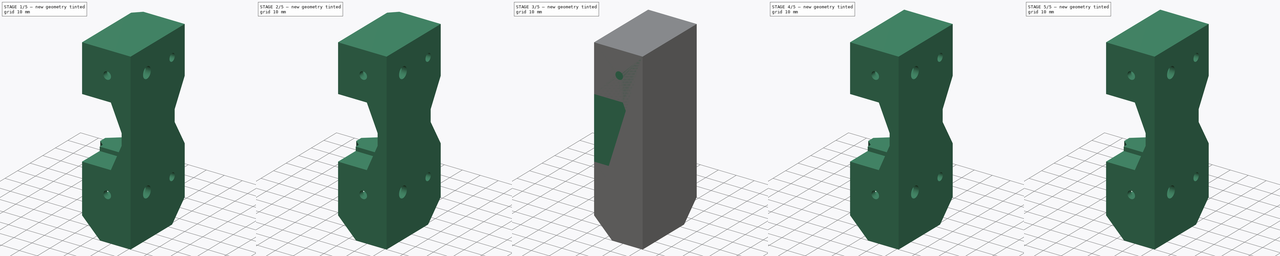
[diagram: build sequence overview — one tinted view per stage of 5, left to right]
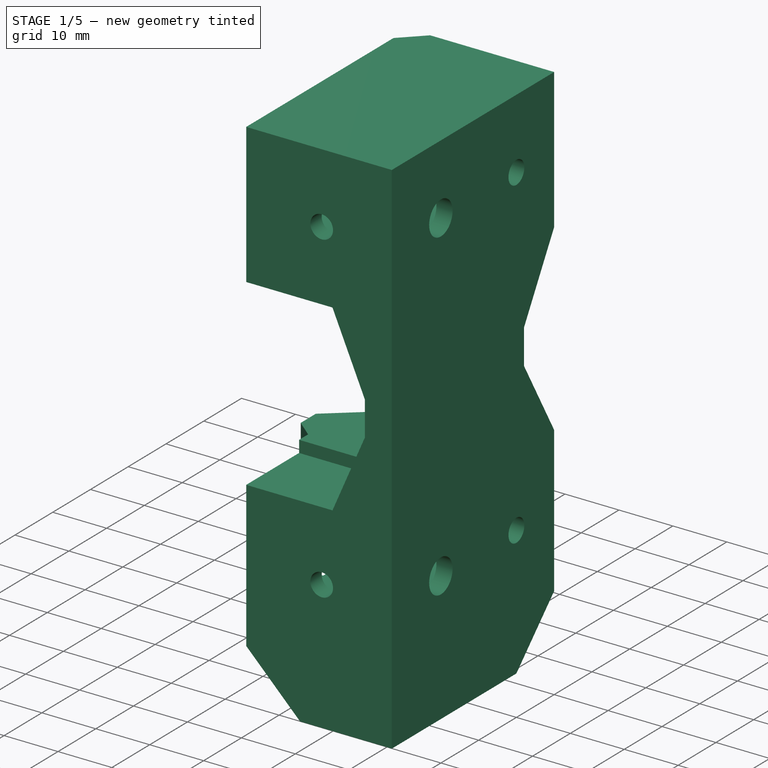
[diagram: stage 1 of 5 — iso view after this stage's code; geometry added in this stage tinted green]
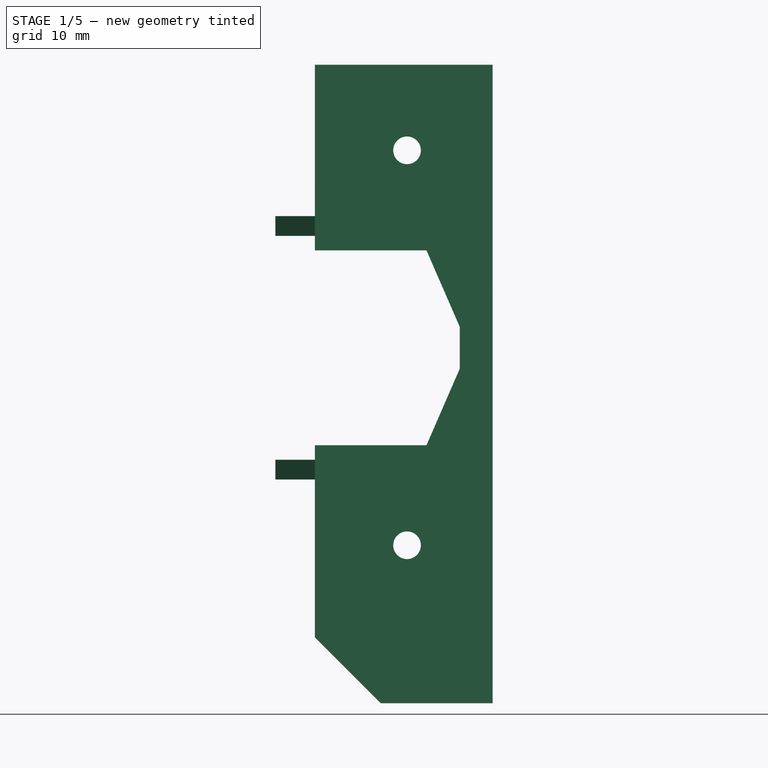
[diagram: stage 1 of 5 — front view after this stage's code; geometry added in this stage tinted green]
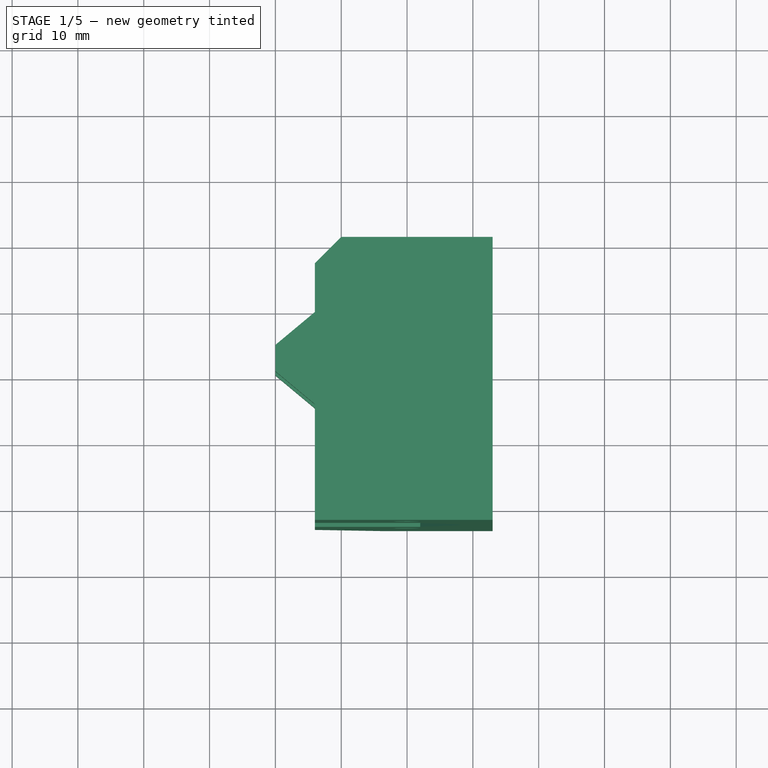
[diagram: stage 1 of 5 — top view after this stage's code; geometry added in this stage tinted green]
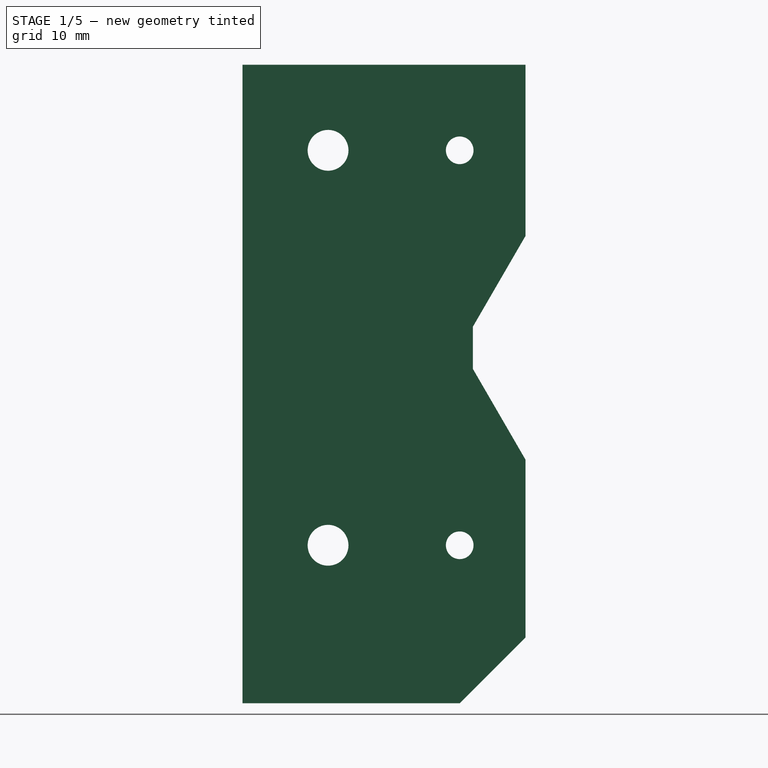
[diagram: stage 1 of 5 — right view after this stage's code; geometry added in this stage tinted green]
FCSTD DOCUMENT  (FreeCAD 0.14R3692 (Git))
Label: foot-rear-right
License: CC-BY 3.0
LicenseURL: http://creativecommons.org/licenses/by/3.0/
objects: Sketcher::SketchObject×12, Part::Feature×8, PartDesign::Pad×6, PartDesign::Pocket×6, Part::Chamfer×5, Part::Box×2, Part::Thickness×1, PartDesign::LinearPattern×1, Part::MultiFuse×1, App::DocumentObjectGroup×1
note: 54 computed .brp shape members not serialized (recipe doc carries the construction recipe); baked Part::Feature solids carry a one-line shape summary decoded from their .brp

FEATURE [Part::Box] Box001  label="foot-cube"
  Height = 14
  Length = 15
  Placement = pos=(-12,-3,-14) rot=(0,0,1;0rad)
  Width = 15
FEATURE [Part::Feature] LinearPattern002  label="y-motor-spacer-refined001"
  shape: bbox 35 x 45 x 88 mm, 56 faces (baked)
FEATURE [Part::Chamfer] Chamfer004010  label="body-recess-reinforced-chamfer001"
  Base = -> LinearPattern002
  Edges = 2 edges: [Edge54 r1=1 r2=4,Edge56 r1=1 r2=4]
FEATURE [Part::Chamfer] Chamfer004011  label="slot-right-chamfer001"
  Base = -> Chamfer004010
  Edges = 4 edges r=4: [Edge17,Edge23,Edge86,Edge91]
FEATURE [Part::Feature] Fusion004  label="body-foot-fusion-refined"
  shape: bbox 35 x 45 x 99 mm, 71 faces (baked)
FEATURE [Part::Chamfer] Chamfer004012  label="body-foot-chamfer"
  Base = -> Fusion004
  Edges = 1 edges: [Edge167 r1=4 r2=1]
FEATURE [Part::Feature] Chamfer004012001  label="foot-rear-right"
  shape: bbox 35 x 45 x 99 mm, 72 faces (baked)
FEATURE [Part::Feature] Part__Feature  label="extrusion-p20n6b-300-bottom-right"
  Placement = pos=(-10,20,10) rot=(-1,0,0;1.5708rad)
  shape: bbox 20 x 300 x 20 mm, 154 faces (baked)
FEATURE [Part::Feature] Part__Feature001  label="extrusion-p20n6b-300-top-right"
  Placement = pos=(-10,20,70) rot=(-1,0,0;1.5708rad)
  shape: bbox 20 x 300 x 20 mm, 154 faces (baked)
FEATURE [Part::Feature] Part__Feature002  label="extrusion-p20n6b-200-bottom-rear"
  Placement = pos=(-200,10,10) rot=(0,1,0;1.5708rad)
  shape: bbox 200 x 20 x 20 mm, 154 faces (baked)
FEATURE [Part::Feature] Part__Feature003  label="extrusion-p20n6b-200-top-rear"
  Placement = pos=(-200,10,70) rot=(0,1,0;1.5708rad)
  shape: bbox 200 x 20 x 20 mm, 154 faces (baked)
FEATURE [App::DocumentObjectGroup] Grupo  label="aux"
  Group = -> [Part__Feature,Part__Feature001,Part__Feature002,Part__Feature003]
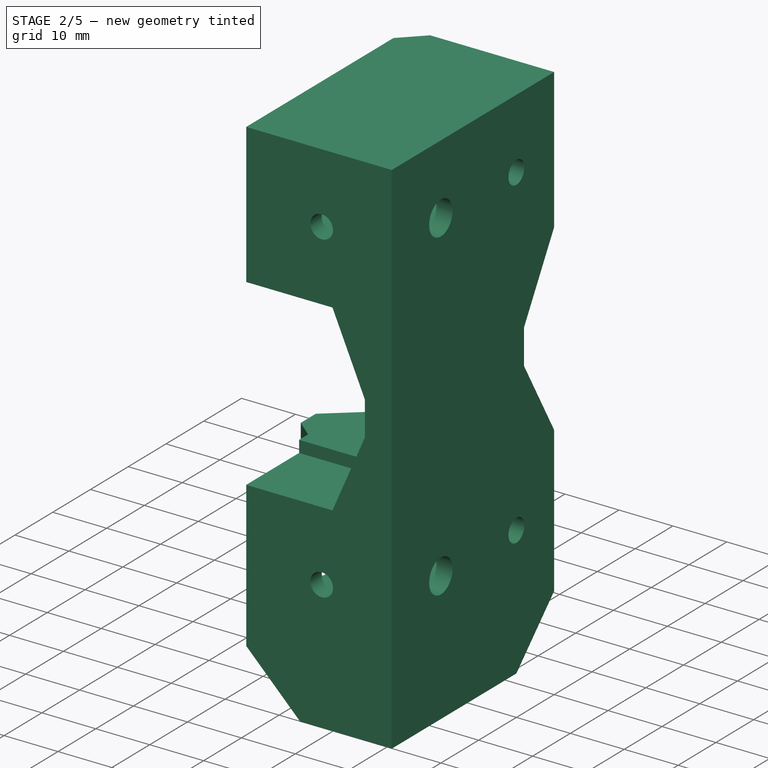
[diagram: stage 2 of 5 — iso view after this stage's code; geometry added in this stage tinted green]
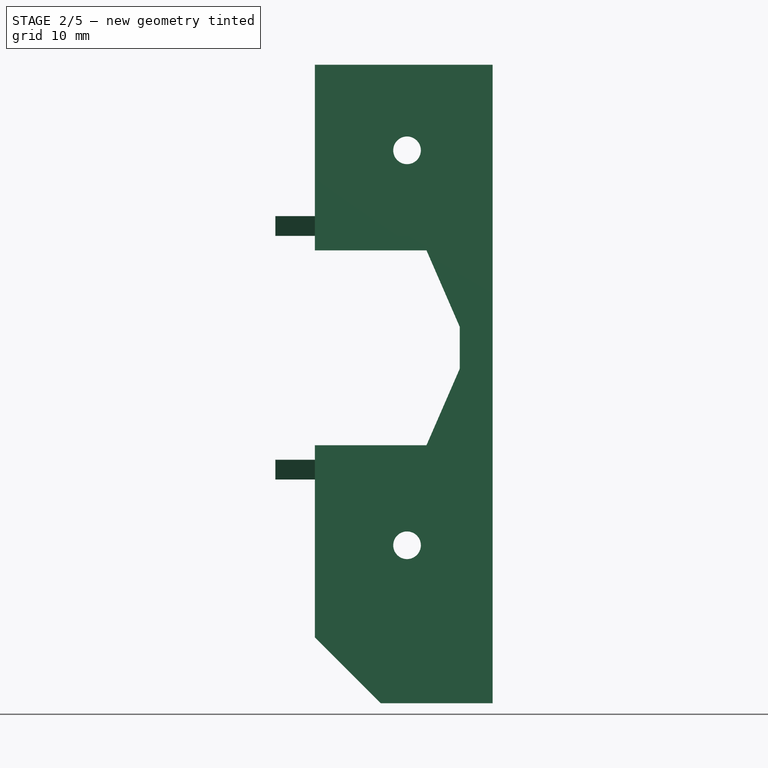
[diagram: stage 2 of 5 — front view after this stage's code; geometry added in this stage tinted green]
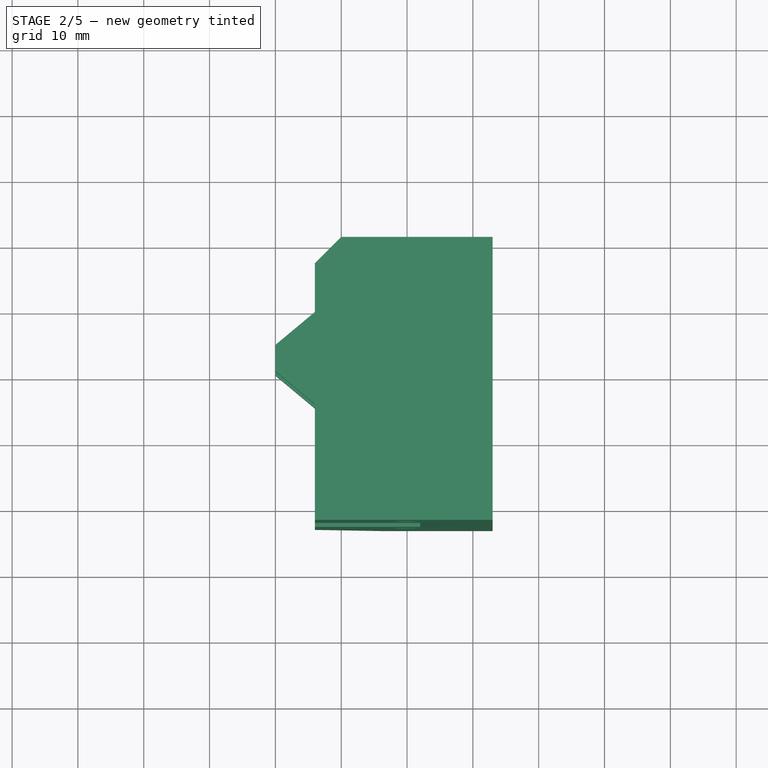
[diagram: stage 2 of 5 — top view after this stage's code; geometry added in this stage tinted green]
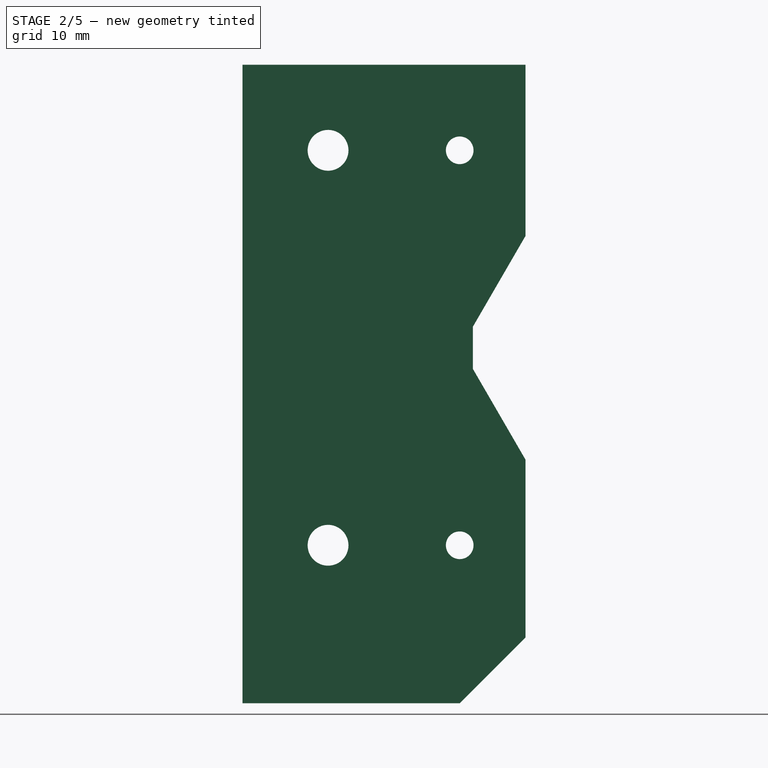
[diagram: stage 2 of 5 — right view after this stage's code; geometry added in this stage tinted green]
FEATURE [Sketcher::SketchObject] Sketch002  label="foot-rear-fin-sketch"
  Placement = pos=(-12,-3,-14) rot=(0.57735,-0.57735,-0.57735;2.0944rad)
  Support = -> Box001 [Face1]
  sketch-geometry (4):
    g0: LineSegment StartX=-3 StartY=14 StartZ=0 EndX=0 EndY=14 EndZ=0
    g1: LineSegment StartX=0 StartY=14 StartZ=0 EndX=0 EndY=0 EndZ=0
    g2: LineSegment StartX=0 StartY=0 StartZ=0 EndX=-3 EndY=0 EndZ=0
    g3: LineSegment StartX=-3 StartY=0 StartZ=0 EndX=-3 EndY=14 EndZ=0
  constraints (11):
    c: Coincident(g0,g1)
    c: Coincident(g1,g2)
    c: Coincident(g2,g3)
    c: Coincident(g3,g0)
    c: Horizontal(g0)
    c: Horizontal(g2)
    c: Vertical(g1)
    c: Vertical(g3)
    c: DistanceX(g2) = -3
    c: DistanceY(g3) = 14
    c: Coincident(g1,g-1)
FEATURE [PartDesign::Pad] Pad001  label="foot-rear-fin-pad"
  Length = 12
  Length2 = 100
  Placement = pos=(-12,-3,-14) rot=(0,0,1;0rad)
  Sketch = -> Sketch002
  Type = 0
FEATURE [Sketcher::SketchObject] Sketch003  label="foot-right-fin-sketch"
  Placement = pos=(-12,12,-14) rot=(0,0.707107,0.707107;3.14159rad)
  Support = -> Pad001 [Face4]
  sketch-geometry (4):
    g0: LineSegment StartX=-15 StartY=14 StartZ=0 EndX=-12 EndY=14 EndZ=0
    g1: LineSegment StartX=-12 StartY=14 StartZ=0 EndX=-12 EndY=0 EndZ=0
    g2: LineSegment StartX=-12 StartY=0 StartZ=0 EndX=-15 EndY=0 EndZ=0
    g3: LineSegment StartX=-15 StartY=0 StartZ=0 EndX=-15 EndY=14 EndZ=0
  constraints (12):
    c: Coincident(g0,g1)
    c: Coincident(g1,g2)
    c: Coincident(g2,g3)
    c: Coincident(g3,g0)
    c: Horizontal(g0)
    c: Horizontal(g2)
    c: Vertical(g1)
    c: Vertical(g3)
    c: DistanceY(g1) = -14
    c: DistanceX(g2) = -3
    c: PointOnObject(g2,g-1)
    c: DistanceX(g-1,g2) = -15
FEATURE [PartDesign::Pad] Pad002  label="foot-right-fin-pad"
  Length = 28
  Length2 = 100
  Placement = pos=(-12,-3,-14) rot=(0,0,1;0rad)
  Sketch = -> Sketch003
  Type = 0
FEATURE [Part::Chamfer] Chamfer  label="foot-chamfer"
  Base = -> Pad002
  Edges = 2 edges r=2: [Edge21,Edge22]
FEATURE [Part::Chamfer] Chamfer001  label="foot-fin-chamfer"
  Base = -> Chamfer
  Edges = 2 edges r=10: [Edge14,Edge24]
FEATURE [Part::MultiFuse] Fusion  label="body-foot-fusion"
  Shapes = -> [Chamfer001,Chamfer004011]
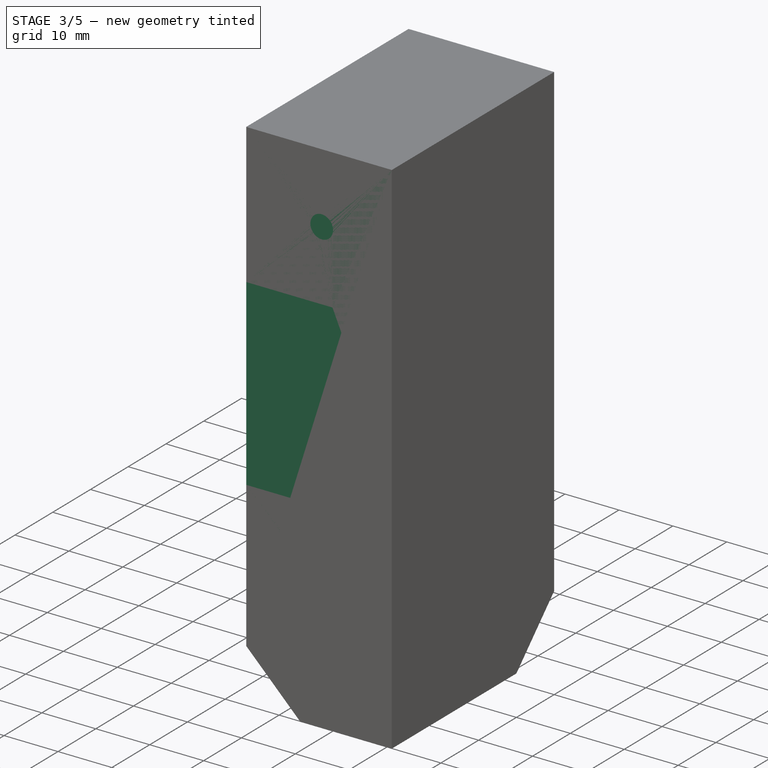
[diagram: stage 3 of 5 — iso view after this stage's code; geometry added in this stage tinted green]
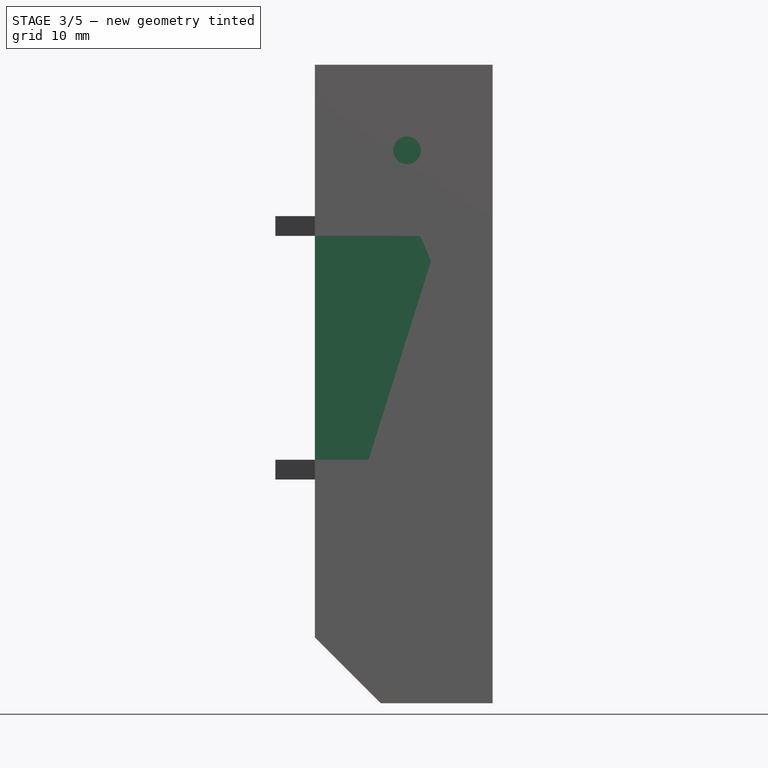
[diagram: stage 3 of 5 — front view after this stage's code; geometry added in this stage tinted green]
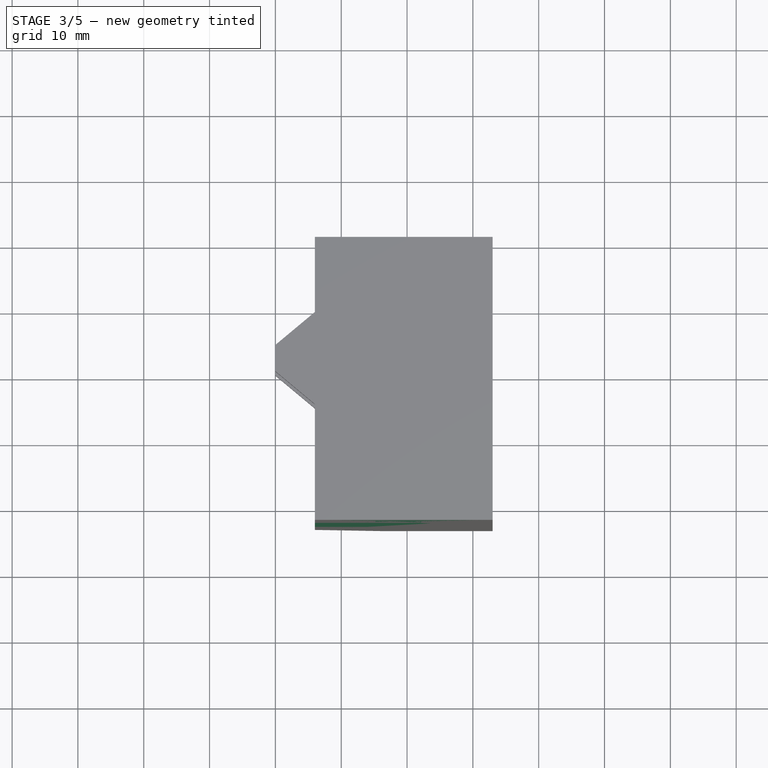
[diagram: stage 3 of 5 — top view after this stage's code; geometry added in this stage tinted green]
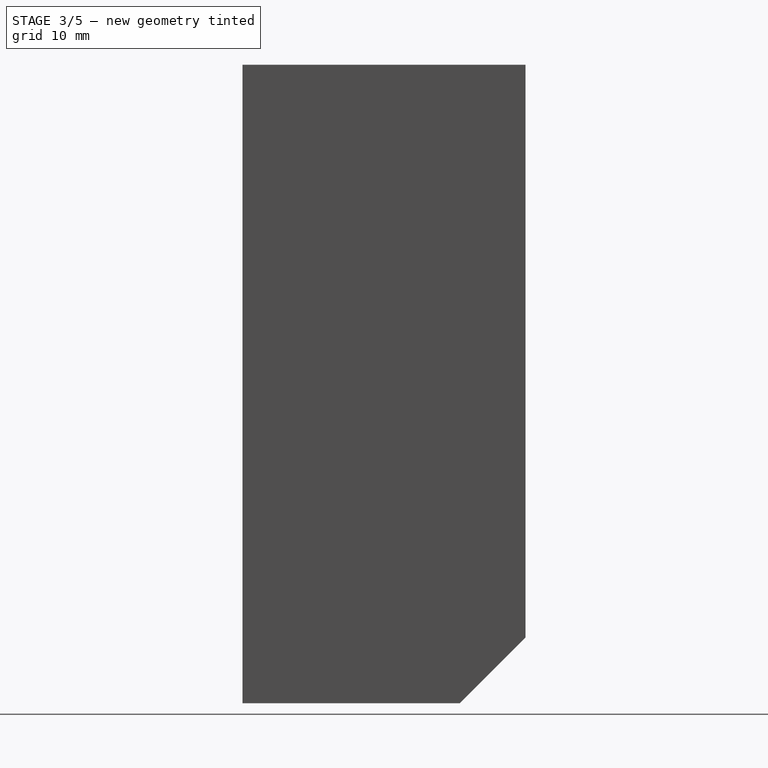
[diagram: stage 3 of 5 — right view after this stage's code; geometry added in this stage tinted green]
FEATURE [Part::Box] Box  label="body-cube"
  Height = 80
  Length = 24
  Placement = pos=(-24,0,0) rot=(0,0,1;0rad)
  Width = 40
FEATURE [Part::Feature] Chamfer004001  label="foot-rear-left"
  shape: bbox 27 x 43 x 97 mm, 56 faces (baked)
FEATURE [Part::Thickness] Thickness  label="body-thickness"
  Faces = -> Box [Face4,Face1]
  Intersection = false
  Join = 2
  Mode = 0
  SelfIntersection = false
  Value = 3
FEATURE [Sketcher::SketchObject] Sketch  label="body-sketch"
  Placement = pos=(0,0,0) rot=(0.57735,-0.57735,-0.57735;2.0944rad)
  Support = -> Thickness [Face1]
  sketch-geometry (4):
    g0: LineSegment StartX=-40 StartY=60 StartZ=0 EndX=0 EndY=60 EndZ=0
    g1: LineSegment StartX=0 StartY=60 StartZ=0 EndX=0 EndY=20 EndZ=0
    g2: LineSegment StartX=0 StartY=20 StartZ=0 EndX=-40 EndY=20 EndZ=0
    g3: LineSegment StartX=-40 StartY=20 StartZ=0 EndX=-40 EndY=60 EndZ=0
  constraints (12):
    c: Coincident(g0,g1)
    c: Coincident(g1,g2)
    c: Coincident(g2,g3)
    c: Coincident(g3,g0)
    c: Horizontal(g0)
    c: Horizontal(g2)
    c: Vertical(g1)
    c: Vertical(g3)
    c: PointOnObject(g1,g-2)
    c: DistanceX(g2) = -40
    c: DistanceY(g1) = -40
    c: DistanceY(g-1,g1) = 20
FEATURE [PartDesign::Pad] Pad  label="body-pad"
  Length = 24
  Length2 = 100
  Sketch = -> Sketch
  Type = 0
FEATURE [Sketcher::SketchObject] Sketch001  label="body-recess-sketch"
  Placement = pos=(-24,0,0) rot=(0.57735,-0.57735,-0.57735;2.0944rad)
  Support = -> Pad [Face9]
  sketch-geometry (4):
    g0: LineSegment StartX=-40 StartY=57 StartZ=0 EndX=0 EndY=57 EndZ=0
    g1: LineSegment StartX=0 StartY=57 StartZ=0 EndX=0 EndY=23 EndZ=0
    g2: LineSegment StartX=0 StartY=23 StartZ=0 EndX=-40 EndY=23 EndZ=0
    g3: LineSegment StartX=-40 StartY=23 StartZ=0 EndX=-40 EndY=57 EndZ=0
  constraints (12):
    c: Coincident(g0,g1)
    c: Coincident(g1,g2)
    c: Coincident(g2,g3)
    c: Coincident(g3,g0)
    c: Horizontal(g0)
    c: Horizontal(g2)
    c: Vertical(g1)
    c: Vertical(g3)
    c: DistanceX(g2) = -40
    c: DistanceY(g1) = -34
    c: DistanceY(g-1,g1) = 23
    c: PointOnObject(g1,g-2)
FEATURE [PartDesign::Pocket] Pocket  label="body-recess-pocket"
  Length = 24
  Sketch = -> Sketch001
  Type = 0
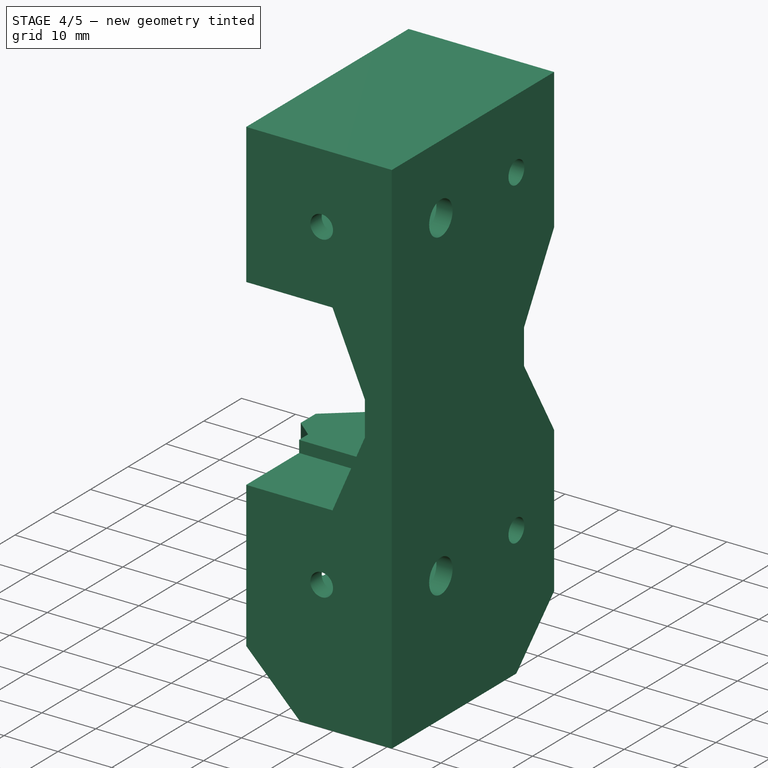
[diagram: stage 4 of 5 — iso view after this stage's code; geometry added in this stage tinted green]
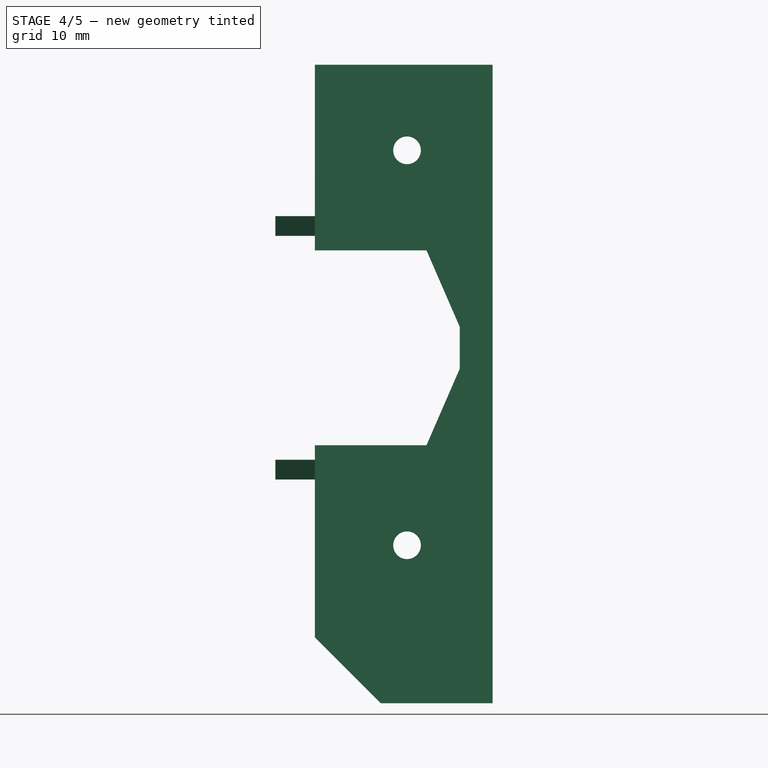
[diagram: stage 4 of 5 — front view after this stage's code; geometry added in this stage tinted green]
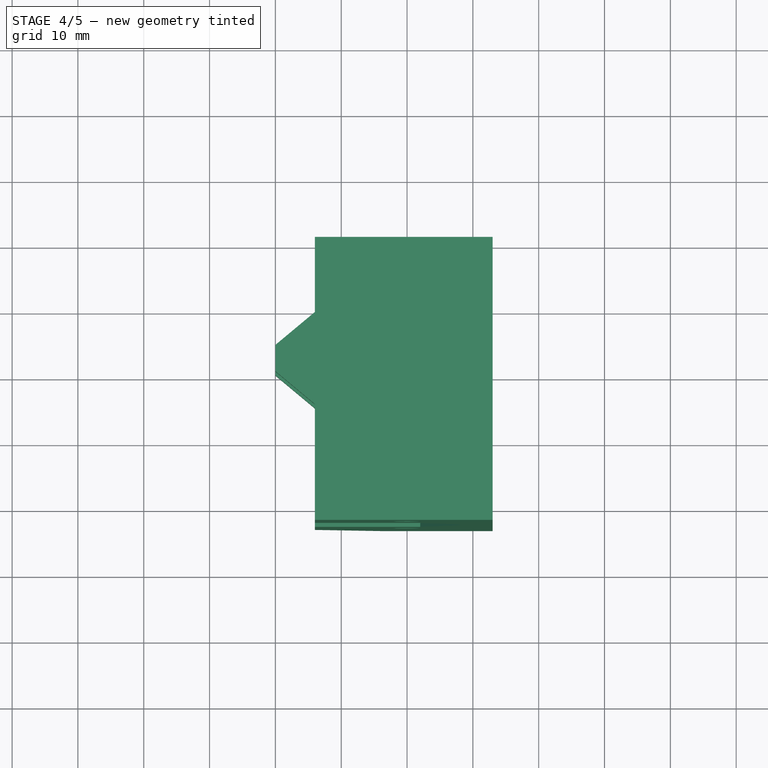
[diagram: stage 4 of 5 — top view after this stage's code; geometry added in this stage tinted green]
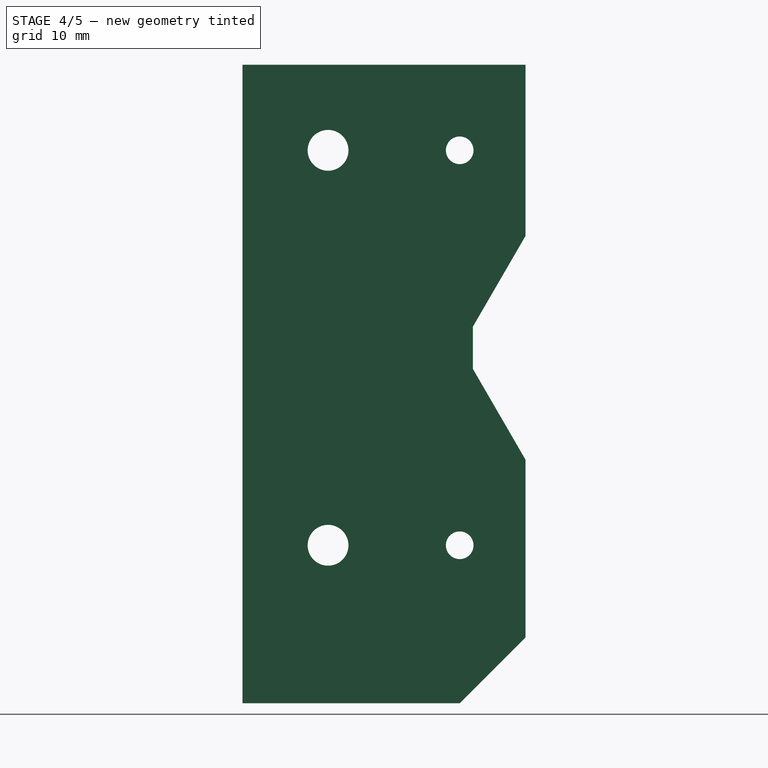
[diagram: stage 4 of 5 — right view after this stage's code; geometry added in this stage tinted green]
FEATURE [Sketcher::SketchObject] Sketch005  label="body-rear-cutout-sketch"
  Placement = pos=(0,-3,0) rot=(1,0,0;1.5708rad)
  Support = -> Pocket [Face7]
  sketch-geometry (6):
    g0: LineSegment StartX=-24 StartY=57 StartZ=0 EndX=-8 EndY=57 EndZ=0
    g1: LineSegment StartX=-8 StartY=57 StartZ=0 EndX=-2 EndY=43.2 EndZ=0
    g2: LineSegment StartX=-2 StartY=43.2 StartZ=0 EndX=-2 EndY=36.8 EndZ=0
    g3: LineSegment StartX=-2 StartY=36.8 StartZ=0 EndX=-8 EndY=23 EndZ=0
    g4: LineSegment StartX=-8 StartY=23 StartZ=0 EndX=-24 EndY=23 EndZ=0
    g5: LineSegment StartX=-24 StartY=23 StartZ=0 EndX=-24 EndY=57 EndZ=0
  constraints (18):
    c: Coincident(g0,g1)
    c: Coincident(g1,g2)
    c: Coincident(g2,g3)
    c: Coincident(g3,g4)
    c: Coincident(g4,g5)
    c: Coincident(g5,g0)
    c: Vertical(g5)
    c: Vertical(g2)
    c: Horizontal(g0)
    c: Horizontal(g4)
    c: DistanceY(g2) = -6.4
    c: DistanceY(g-1,g4) = 23
    c: DistanceX(g-1,g4) = -24
    c: DistanceY(g5) = 34
    c: DistanceX(g4) = -16
    c: DistanceX(g0) = 16
    c: Equal(g1,g3)
    c: DistanceX(g-1,g2) = -2
FEATURE [PartDesign::Pocket] Pocket001  label="body-rear-cutout-pocket"
  Length = 3
  Sketch = -> Sketch005
  Type = 0
FEATURE [Sketcher::SketchObject] Sketch006  label="body-right-cutout-sketch"
  Placement = pos=(3,0,0) rot=(0.57735,0.57735,0.57735;2.0944rad)
  Support = -> Pocket001 [Face10]
  sketch-geometry (4):
    g0: LineSegment StartX=40 StartY=57 StartZ=0 EndX=32 EndY=43.2 EndZ=0
    g1: LineSegment StartX=32 StartY=43.2 StartZ=0 EndX=32 EndY=36.8 EndZ=0
    g2: LineSegment StartX=32 StartY=36.8 StartZ=0 EndX=40 EndY=23 EndZ=0
    g3: LineSegment StartX=40 StartY=23 StartZ=0 EndX=40 EndY=57 EndZ=0
  constraints (12):
    c: Coincident(g0,g1)
    c: Coincident(g1,g2)
    c: Vertical(g1)
    c: Vertical(g3)
    c: DistanceX(g-1,g3) = 40
    c: DistanceY(g3) = 34
    c: DistanceX(g-1,g1) = 32
    c: Equal(g2,g0)
    c: DistanceY(g1) = -6.4
    c: DistanceY(g-1,g3) = 23
    c: Coincident(g3,g2)
    c: Coincident(g3,g0)
FEATURE [PartDesign::Pocket] Pocket002  label="body-right-cutout-pocket"
  Length = 3
  Sketch = -> Sketch006
  Type = 0
FEATURE [Sketcher::SketchObject] Sketch004  label="slot-rear-guides-sketch"
  Placement = pos=(0,0,0) rot=(0.57735,-0.57735,-0.57735;2.0944rad)
  Support = -> Pocket002 [Face4]
  sketch-geometry (8):
    g0: LineSegment StartX=-13 StartY=2.5 StartZ=0 EndX=-7 EndY=2.5 EndZ=0
    g1: LineSegment StartX=-7 StartY=2.5 StartZ=0 EndX=-7 EndY=0 EndZ=0
    g2: LineSegment StartX=-7 StartY=0 StartZ=0 EndX=-13 EndY=0 EndZ=0
    g3: LineSegment StartX=-13 StartY=0 StartZ=0 EndX=-13 EndY=2.5 EndZ=0
    g4: LineSegment StartX=-13 StartY=80 StartZ=0 EndX=-7 EndY=80 EndZ=0
    g5: LineSegment StartX=-7 StartY=80 StartZ=0 EndX=-7 EndY=77.5 EndZ=0
    g6: LineSegment StartX=-7 StartY=77.5 StartZ=0 EndX=-13 EndY=77.5 EndZ=0
    g7: LineSegment StartX=-13 StartY=77.5 StartZ=0 EndX=-13 EndY=80 EndZ=0
  constraints (24):
    c: Coincident(g0,g1)
    c: Coincident(g1,g2)
    c: Coincident(g2,g3)
    c: Coincident(g3,g0)
    c: Horizontal(g0)
    c: Horizontal(g2)
    c: Vertical(g1)
    c: Vertical(g3)
    c: Coincident(g4,g5)
    c: Coincident(g5,g6)
    c: Coincident(g6,g7)
    c: Coincident(g7,g4)
    c: Horizontal(g4)
    c: Horizontal(g6)
    c: Vertical(g5)
    c: Vertical(g7)
    c: DistanceX(g0) = 6
    c: DistanceY(g1) = -2.5
    c: DistanceX(g6) = -6
    c: DistanceY(g5) = -2.5
    c: PointOnObject(g2,g-1)
    c: DistanceY(g-1,g4) = 80
    c: DistanceX(g-1,g1) = -7
    c: DistanceX(g-1,g4) = -7
FEATURE [PartDesign::Pad] Pad003  label="slot-rear-guides-pad"
  Length = 24
  Length2 = 100
  Sketch = -> Sketch004
  Type = 0
FEATURE [Sketcher::SketchObject] Sketch007  label="slot-rear-screw-holes-sketch"
  Placement = pos=(0,-3,0) rot=(1,0,0;1.5708rad)
  Support = -> Pad003 [Face9]
  sketch-geometry (2):
    g0: Circle CenterX=-10 CenterY=10 CenterZ=0 NormalX=0 NormalY=0 NormalZ=1 Radius=2.1
    g1: Circle CenterX=-10 CenterY=70 CenterZ=0 NormalX=0 NormalY=0 NormalZ=1 Radius=2.1
  constraints (6):
    c: Radius(g0) = 2.1
    c: Equal(g0,g1)
    c: DistanceX(g-1,g0) = -10
    c: DistanceY(g-1,g0) = 10
    c: DistanceX(g-1,g1) = -10
    c: DistanceY(g-1,g1) = 70
FEATURE [PartDesign::Pocket] Pocket003  label="slot-rear-screw-holes-pocket"
  Length = 3
  Sketch = -> Sketch007
  Type = 0
FEATURE [Sketcher::SketchObject] Sketch008  label="slot-right-screw-holes-sketch"
  Placement = pos=(3,0,0) rot=(0.57735,0.57735,0.57735;2.0944rad)
  Support = -> Pocket003 [Face3]
  sketch-geometry (4):
    g0: Circle CenterX=30 CenterY=10 CenterZ=0 NormalX=0 NormalY=0 NormalZ=1 Radius=2.1
    g1: Circle CenterX=30 CenterY=70 CenterZ=0 NormalX=0 NormalY=0 NormalZ=1 Radius=2.1
    g2: Circle CenterX=10 CenterY=10 CenterZ=0 NormalX=0 NormalY=0 NormalZ=1 Radius=3.1
    g3: Circle CenterX=10 CenterY=70 CenterZ=0 NormalX=0 NormalY=0 NormalZ=1 Radius=3.1
  constraints (12):
    c: Radius(g0) = 2.1
    c: Equal(g0,g1)
    c: DistanceY(g-1,g0) = 10
    c: DistanceX(g-1,g0) = 30
    c: DistanceY(g-1,g1) = 70
    c: DistanceX(g-1,g1) = 30
    c: Radius(g2) = 3.1
    c: Equal(g2,g3)
    c: DistanceY(g-1,g2) = 10
    c: DistanceX(g-1,g2) = 10
    c: DistanceY(g-1,g3) = 70
    c: DistanceX(g-1,g3) = 10
FEATURE [PartDesign::Pocket] Pocket004  label="slot-right-screw-holes-pocket"
  Length = 3
  Sketch = -> Sketch008
  Type = 0
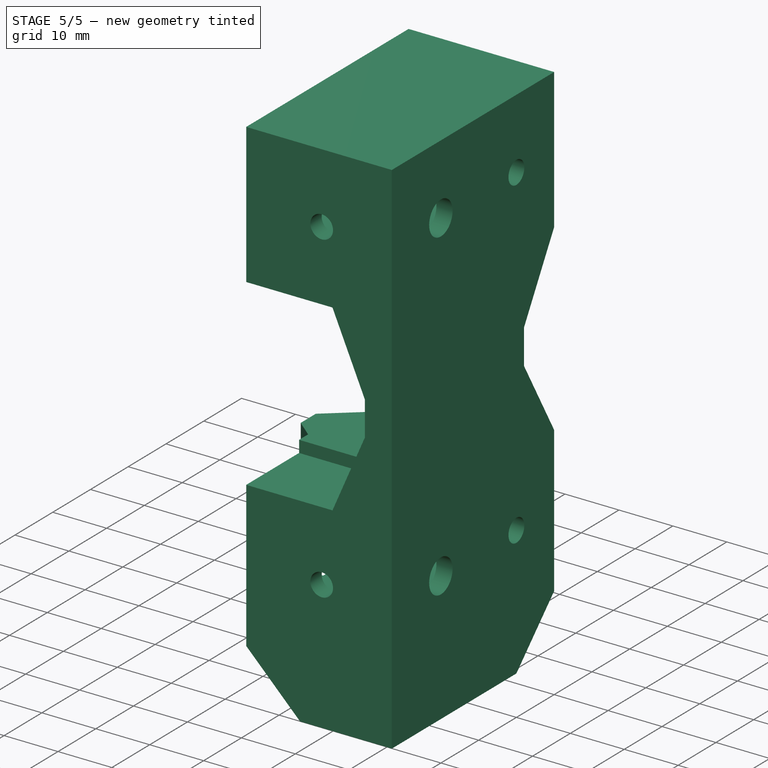
[diagram: stage 5 of 5 — iso view after this stage's code; geometry added in this stage tinted green]
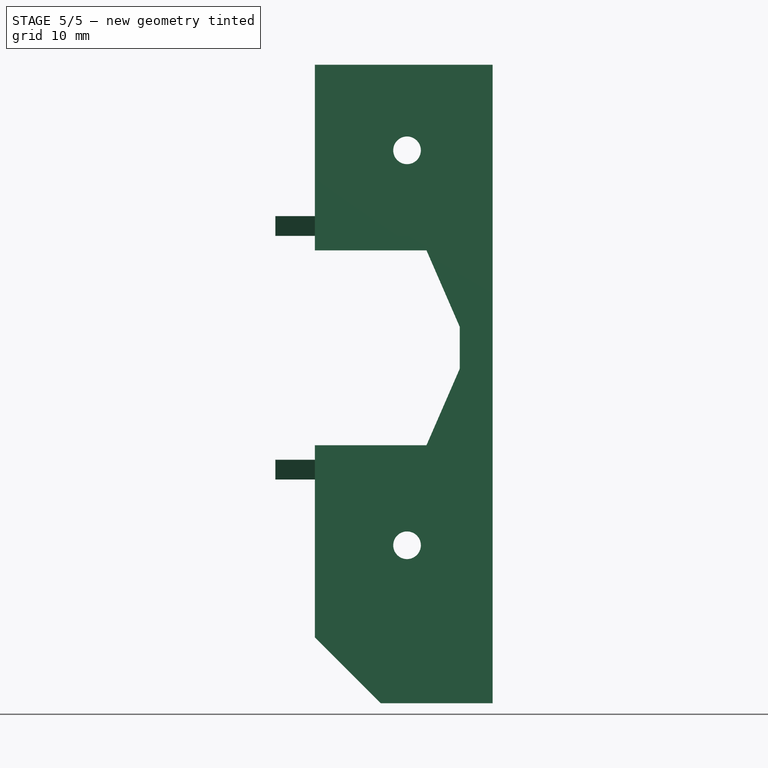
[diagram: stage 5 of 5 — front view after this stage's code; geometry added in this stage tinted green]
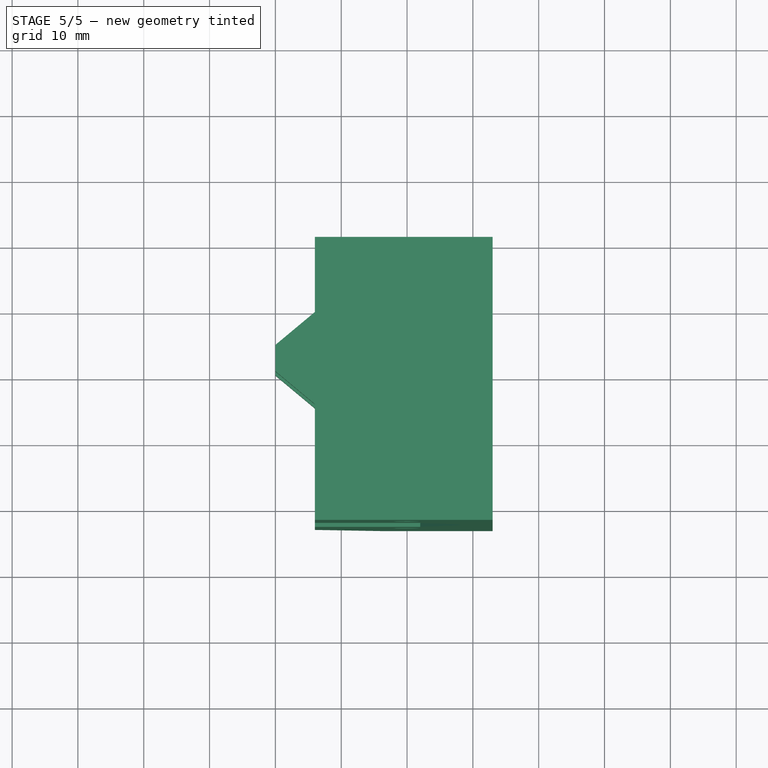
[diagram: stage 5 of 5 — top view after this stage's code; geometry added in this stage tinted green]
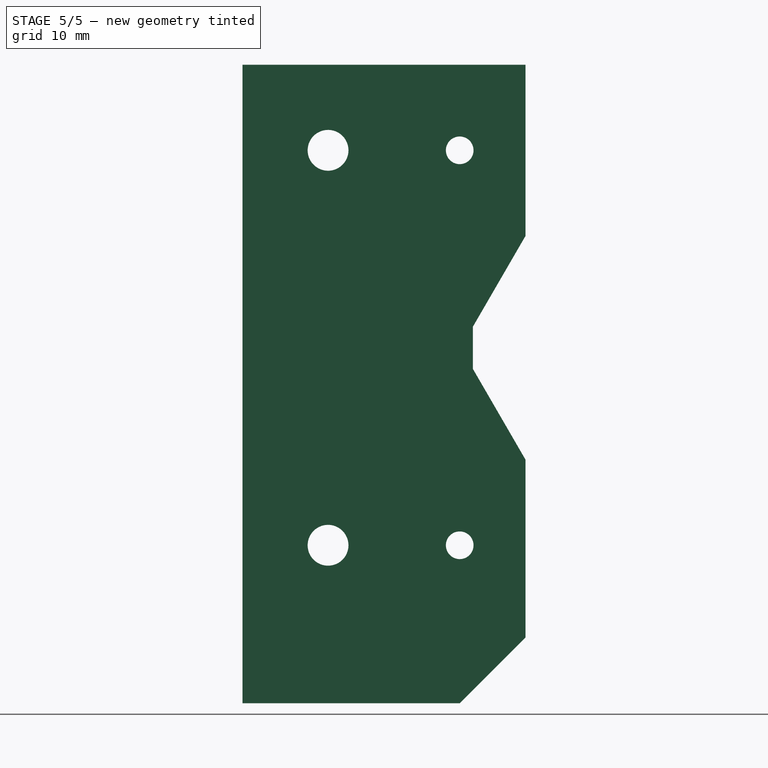
[diagram: stage 5 of 5 — right view after this stage's code; geometry added in this stage tinted green]
FEATURE [Sketcher::SketchObject] Sketch009  label="switch-holder-sketch"
  Placement = pos=(0,0,0) rot=(0.57735,-0.57735,-0.57735;2.0944rad)
  Support = -> Pocket004 [Face18]
  sketch-geometry (4):
    g0: LineSegment StartX=-15 StartY=57 StartZ=0 EndX=-11 EndY=57 EndZ=0
    g1: LineSegment StartX=-11 StartY=57 StartZ=0 EndX=-11 EndY=23 EndZ=0
    g2: LineSegment StartX=-11 StartY=23 StartZ=0 EndX=-15 EndY=23 EndZ=0
    g3: LineSegment StartX=-15 StartY=23 StartZ=0 EndX=-15 EndY=57 EndZ=0
  constraints (12):
    c: Coincident(g0,g1)
    c: Coincident(g1,g2)
    c: Coincident(g2,g3)
    c: Coincident(g3,g0)
    c: Horizontal(g0)
    c: Horizontal(g2)
    c: Vertical(g1)
    c: Vertical(g3)
    c: DistanceX(g2) = -4
    c: DistanceX(g-1,g1) = -11
    c: DistanceY(g1) = -34
    c: DistanceY(g-1,g1) = 23
FEATURE [PartDesign::Pad] Pad004  label="switch-holder-pad"
  Length = 24
  Length2 = 100
  Sketch = -> Sketch009
  Type = 0
FEATURE [Sketcher::SketchObject] Sketch010  label="switch-holder-cutout-sketch"
  Placement = pos=(0,15,0) rot=(0,0.707107,0.707107;3.14159rad)
  Support = -> Pad004 [Face40]
  sketch-geometry (4):
    g0: LineSegment StartX=24 StartY=54.8 StartZ=0 EndX=1 EndY=54.8 EndZ=0
    g1: LineSegment StartX=1 StartY=54.8 StartZ=0 EndX=1 EndY=25.2 EndZ=0
    g2: LineSegment StartX=1 StartY=25.2 StartZ=0 EndX=24 EndY=25.2 EndZ=0
    g3: LineSegment StartX=24 StartY=25.2 StartZ=0 EndX=24 EndY=54.8 EndZ=0
  constraints (12):
    c: Coincident(g0,g1)
    c: Coincident(g1,g2)
    c: Coincident(g2,g3)
    c: Coincident(g3,g0)
    c: Horizontal(g0)
    c: Horizontal(g2)
    c: Vertical(g1)
    c: Vertical(g3)
    c: DistanceX(g2) = 23
    c: DistanceY(g3) = 29.6
    c: DistanceX(g-1,g1) = 1
    c: DistanceY(g-1,g1) = 25.2
FEATURE [PartDesign::Pocket] Pocket005  label="switch-holder-cutout-pocket"
  Length = 4
  Sketch = -> Sketch010
  Type = 0
FEATURE [Sketcher::SketchObject] Sketch011  label="y-motor-spacer-sketch"
  Placement = pos=(0,0,60) rot=(0,0,1;0rad)
  Support = -> Pocket005 [Face49]
  sketch-geometry (4):
    g0: LineSegment StartX=-30 StartY=24 StartZ=0 EndX=-24 EndY=29 EndZ=0
    g1: LineSegment StartX=-24 StartY=29 StartZ=0 EndX=-24 EndY=15 EndZ=0
    g2: LineSegment StartX=-24 StartY=15 StartZ=0 EndX=-30 EndY=20 EndZ=0
    g3: LineSegment StartX=-30 StartY=20 StartZ=0 EndX=-30 EndY=24 EndZ=0
  constraints (12):
    c: Coincident(g0,g1)
    c: Coincident(g1,g2)
    c: Coincident(g2,g3)
    c: Coincident(g3,g0)
    c: Vertical(g1)
    c: Vertical(g3)
    c: DistanceY(g1) = -14
    c: DistanceY(g3) = 4
    c: Equal(g2,g0)
    c: DistanceX(g0,g0) = 6
    c: DistanceX(g-1,g1) = -24
    c: DistanceY(g-1,g1) = 15
FEATURE [PartDesign::Pad] Pad005  label="y-motor-spacer-pad"
  Length = 3
  Length2 = 100
  Reversed = true
  Sketch = -> Sketch011
  Type = 0
FEATURE [PartDesign::LinearPattern] LinearPattern  label="y-motor-spacer"
  Direction = -> Pad005 [Face54]
  Length = 37
  Occurrences = 2
  Originals = -> [Pad005]
  Reversed = true
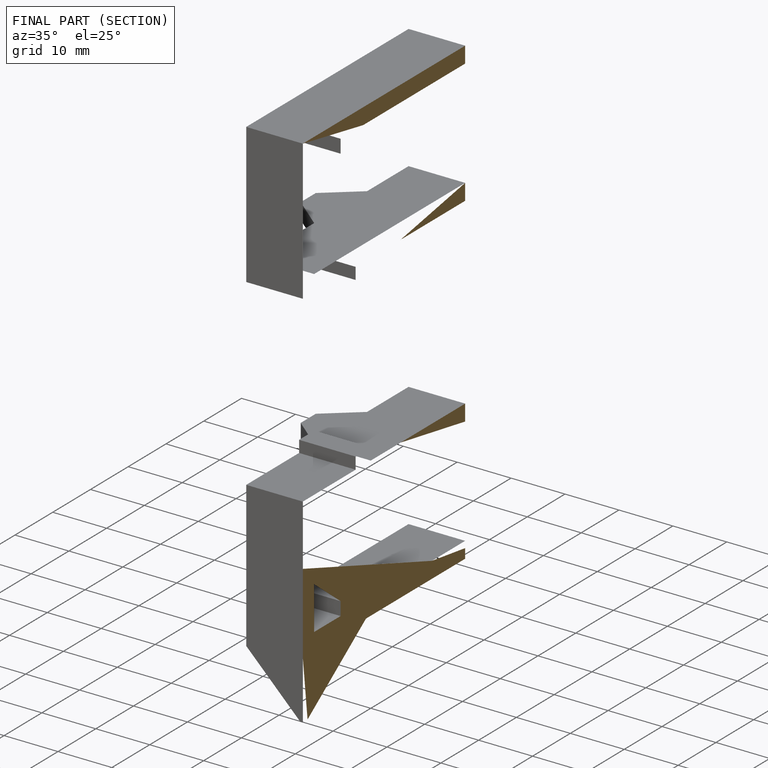
[diagram: finished part — half-section view (interior)]
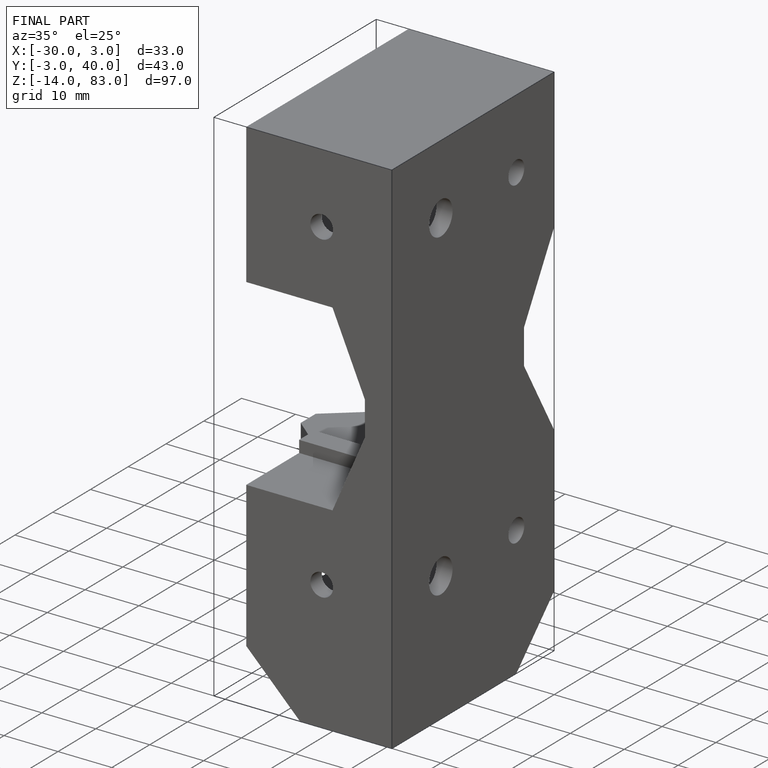
[diagram: finished part — iso view with bounding-box wireframe]
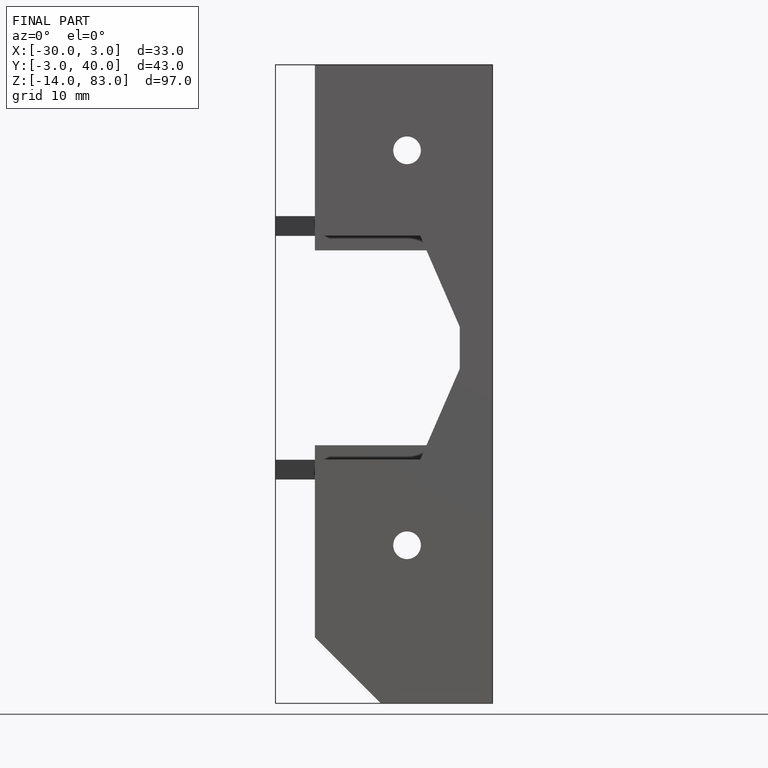
[diagram: finished part — front view with bounding-box wireframe]
